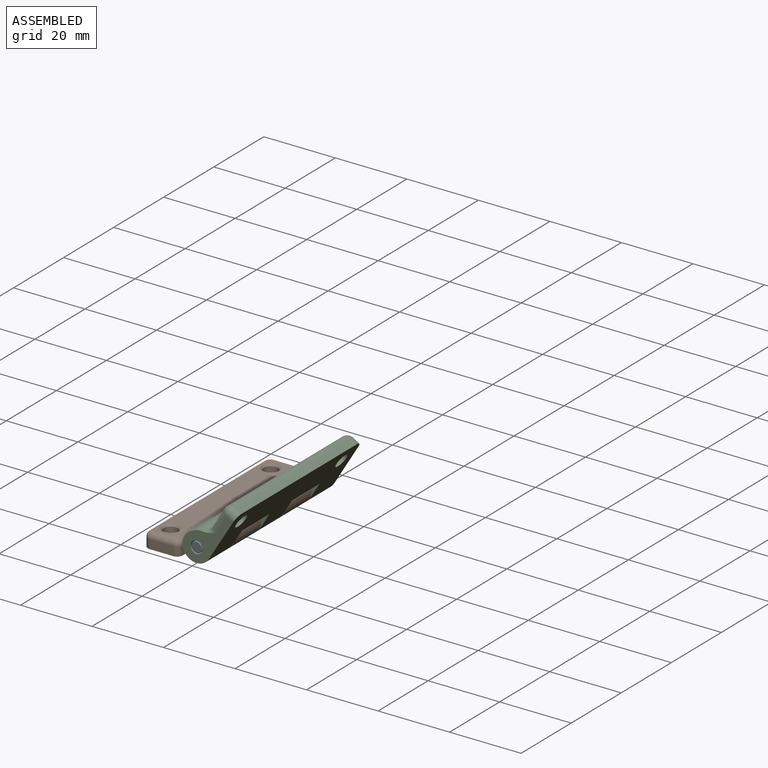
[diagram: assembled view]
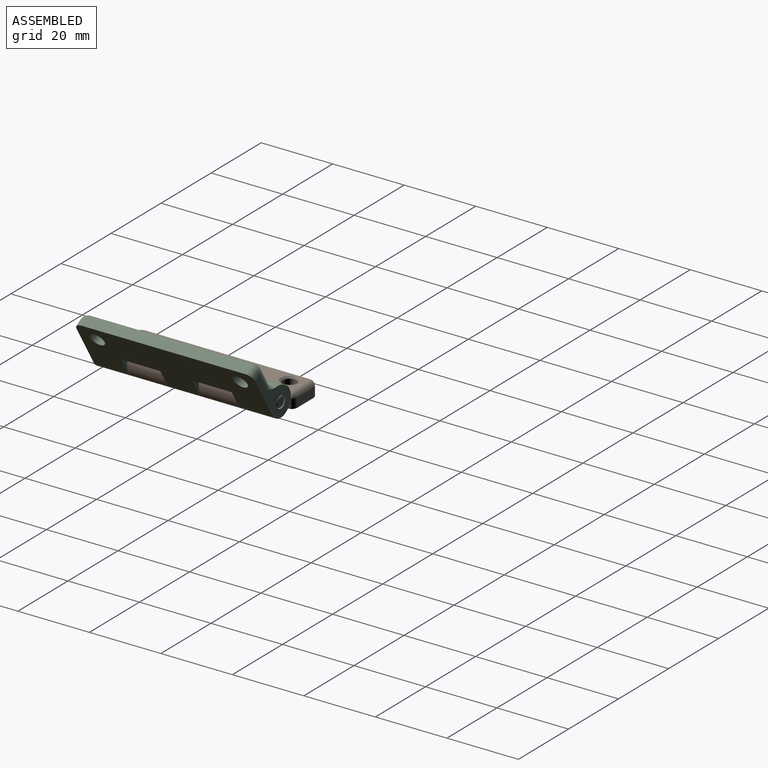
[diagram: assembled view, second angle]
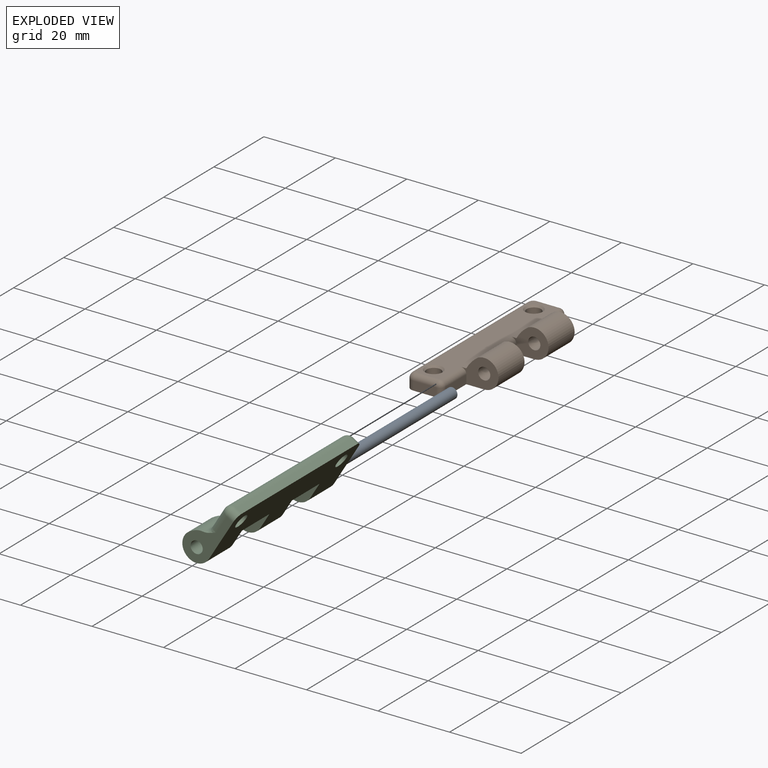
[diagram: exploded view]
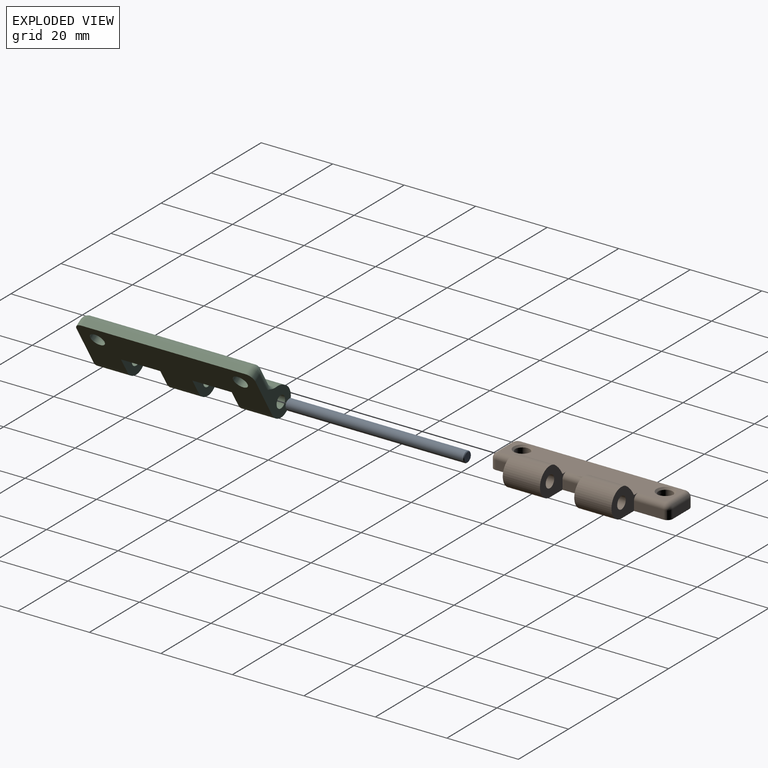
[diagram: exploded view, second angle]
ASSEMBLY  parts=3 mates=2
PART A: 5 faces, bbox 3x50x3 mm
  f0: plane 2.6x2.6mm, normal (0,1,0), area 5.3mm2, adj f4
  f1: cylinder r=1.5mm len=49.6mm, axis (0,1,0), area 467.5mm2, adj f3,f4
  f2: plane 2.6x2.6mm, normal (0,-1,0), area 5.3mm2, adj f3
  f3: cone r=1.5mm half-angle=45deg, axis (0,1,0), area 2.5mm2, adj f1,f2
  f4: cone r=1.3mm half-angle=45deg, axis (0,-1,0), area 2.5mm2, adj f0,f1
PART B: 36 faces, bbox 19x50x8 mm
  f0: cylinder r=4mm len=10.4mm, axis (0,1,0), area 148.7mm2, adj f5,f7,f12,f35
  f1: plane 46x2.5mm, normal (-1,0,0), area 115mm2, adj f5,f20,f21,f29
  f2: plane 6.5x2.5mm, normal (0,-1,0), area 16.2mm2, adj f5,f20,f23,f25
  f3: plane 6.5x2.5mm, normal (0,1,0), area 16.2mm2, adj f5,f21,f27,f32
  f4: plane 47x8.5mm, normal (0,0,1), area 320.8mm2, adj f7,f10,f12,f13,f16,f17,f22,f25
  f5: plane 50x15mm, normal (0,0,-1), area 576.2mm2, adj f0,f1,f2,f3,f6,f7,f8,f9
  f6: cylinder r=4mm len=10.4mm, axis (0,1,0), area 148.7mm2, adj f5,f10,f13,f34
  f7: plane 10.5x8mm, normal (0,1,0), area 50.1mm2, adj f0,f4,f5,f8,f19,f28,f35
  f8: plane 8.3x2.5mm, normal (1,0,0), area 20.8mm2, adj f5,f7,f27,f28
  f9: plane 8.3x2.5mm, normal (1,0,0), area 20.8mm2, adj f5,f10,f22,f23
  f10: plane 10.5x8mm, normal (0,-1,0), area 50.1mm2, adj f4,f5,f6,f9,f18,f22,f34
  f11: plane 9.6x2.5mm, normal (1,0,0), area 24mm2, adj f5,f12,f13,f33
  f12: plane 10.5x8mm, normal (0,-1,0), area 50.1mm2, adj f0,f4,f5,f11,f19,f33,f35
  f13: plane 10.5x8mm, normal (0,1,0), area 50.1mm2, adj f4,f5,f6,f11,f18,f33,f34
  f14: cylinder r=2mm len=4mm, axis (0,0,1), area 44mm2, adj f5,f16
  f15: cylinder r=2mm len=4mm, axis (0,0,1), area 44mm2, adj f5,f17
  f16: cone r=2mm half-angle=45deg, axis (0,0,1), area 10mm2, adj f4,f14
  f17: cone r=2mm half-angle=45deg, axis (0,0,1), area 10mm2, adj f4,f15
  f18: cylinder r=1.7mm len=10.4mm, axis (0,1,0), area 111.1mm2, adj f10,f13
  f19: cylinder r=1.7mm len=10.4mm, axis (0,1,0), area 111.1mm2, adj f7,f12
  f20: cylinder r=2mm len=2.5mm, axis (0,0,-1), area 7.9mm2, adj f1,f2,f5,f26
  f21: cylinder r=2mm len=2.5mm, axis (0,0,-1), area 7.9mm2, adj f1,f3,f5,f31
  f22: cylinder r=1.5mm len=8.3mm, axis (0,1,0), area 19.6mm2, adj f4,f9,f10,f24
  f23: cylinder r=1.5mm len=2.5mm, axis (0,0,1), area 5.9mm2, adj f2,f5,f9,f24
  f24: sphere r=1.5mm, area 3.5mm2, adj f22,f23,f25
  f25: cylinder r=1.5mm len=6.5mm, axis (-1,0,0), area 15.3mm2, adj f2,f4,f24,f26
  f26: torus R=0.5mm, axis (0,0,1), area 5.4mm2, adj f4,f20,f25,f29
  f27: cylinder r=1.5mm len=2.5mm, axis (0,0,1), area 5.9mm2, adj f3,f5,f8,f30
  f28: cylinder r=1.5mm len=8.3mm, axis (0,1,0), area 19.6mm2, adj f4,f7,f8,f30
  f29: cylinder r=1.5mm len=46mm, axis (0,1,0), area 108.4mm2, adj f1,f4,f26,f31
  f30: sphere r=1.5mm, area 3.5mm2, adj f27,f28,f32
  f31: torus R=0.5mm, axis (0,0,1), area 5.4mm2, adj f4,f21,f29,f32
  f32: cylinder r=1.5mm len=6.5mm, axis (1,0,0), area 15.3mm2, adj f3,f4,f30,f31
  f33: cylinder r=1.5mm len=9.6mm, axis (0,1,0), area 22.6mm2, adj f4,f11,f12,f13
  f34: cylinder r=10mm len=10.4mm, axis (0,-1,0), area 51.7mm2, adj f4,f6,f10,f13
  f35: cylinder r=10mm len=10.4mm, axis (0,-1,0), area 51.7mm2, adj f0,f4,f7,f12
PART C: 41 faces, bbox 19.8x54.8x8.8 mm
  f0: plane 9x0.66mm, normal (0.5,0,0.87), area 6.8mm2, adj f3,f5,f9,f28
  f1: plane 9.5x0.66mm, normal (0.5,0,0.87), area 7.2mm2, adj f4,f13,f16,f26
  f2: plane 9.5x0.66mm, normal (0.5,0,0.87), area 7.2mm2, adj f6,f10,f11,f27
  f3: plane 11x8mm, normal (0,1,0), area 51.6mm2, adj f0,f7,f9,f14,f15,f22,f28,f29
  f4: plane 11x8mm, normal (0,-1,0), area 51.6mm2, adj f1,f7,f14,f15,f16,f23,f26,f29
  f5: plane 11x8mm, normal (0,-1,0), area 51.6mm2, adj f0,f8,f9,f14,f15,f22,f28,f30
  f6: plane 11x8mm, normal (0,1,0), area 51.6mm2, adj f2,f8,f10,f14,f15,f21,f27,f30
  f7: plane 11x2mm, normal (-1,0,0), area 22mm2, adj f3,f4,f15,f29
  f8: plane 11x2mm, normal (-1,0,0), area 22mm2, adj f5,f6,f15,f30
  f9: cylinder r=4mm len=9mm, axis (0,1,0), area 131.9mm2, adj f0,f3,f5,f15
  f10: cylinder r=4mm len=9.5mm, axis (0,1,0), area 139.3mm2, adj f2,f6,f11,f15
  f11: plane 17.8x8.8mm, normal (0,-1,0), area 68.8mm2, adj f2,f10,f15,f21,f24,f27,f31,f39
  f12: plane 46x2mm, normal (1,0,0), area 92mm2, adj f15,f24,f25,f35
  f13: plane 17.8x8.8mm, normal (0,1,0), area 68.8mm2, adj f1,f15,f16,f23,f25,f26,f32,f37
  f14: plane 46x6.64mm, normal (0,0,1), area 252.8mm2, adj f3,f4,f5,f6,f19,f20,f29,f30
  f15: plane 50x15mm, normal (0,0,-1), area 613.2mm2, adj f3,f4,f5,f6,f7,f8,f9,f10
  f16: cylinder r=4mm len=9.5mm, axis (0,1,0), area 139.3mm2, adj f1,f4,f13,f15
  f17: cylinder r=2mm len=4mm, axis (0,0,1), area 44mm2, adj f15,f20
  f18: cylinder r=2mm len=4mm, axis (0,0,1), area 44mm2, adj f15,f19
  f19: cone r=2mm half-angle=45deg, axis (0,0,1), area 10mm2, adj f14,f18,f35
  f20: cone r=2mm half-angle=45deg, axis (0,0,1), area 10mm2, adj f14,f17,f35
  f21: cylinder r=1.7mm len=9.5mm, axis (0,1,0), area 101.5mm2, adj f6,f11
  f22: cylinder r=1.7mm len=9mm, axis (0,1,0), area 96.1mm2, adj f3,f5
  f23: cylinder r=1.7mm len=9.5mm, axis (0,1,0), area 101.5mm2, adj f4,f13
  f24: cylinder r=2mm len=2mm, axis (0,0,-1), area 6.3mm2, adj f11,f12,f15,f33
  f25: cylinder r=2mm len=2mm, axis (0,0,-1), area 6.3mm2, adj f12,f13,f15,f34
  f26: cylinder r=5mm len=9.5mm, axis (0,-1,0), area 27.3mm2, adj f1,f4,f13,f36,f37
  f27: cylinder r=5mm len=9.5mm, axis (0,-1,0), area 27.3mm2, adj f2,f6,f11,f38,f39
  f28: cylinder r=5mm len=9mm, axis (0,-1,0), area 25.4mm2, adj f0,f3,f5,f40
  f29: cylinder r=2mm len=11mm, axis (0,1,0), area 34.6mm2, adj f3,f4,f7,f14
  f30: cylinder r=2mm len=11mm, axis (0,1,0), area 34.6mm2, adj f5,f6,f8,f14
  f31: cylinder r=2mm len=6.64mm, axis (-1,0,0), area 19.7mm2, adj f11,f14,f33,f39
  f32: cylinder r=2mm len=6.64mm, axis (1,0,0), area 19.7mm2, adj f13,f14,f34,f37
  f33: sphere r=2mm, area 6.3mm2, adj f24,f31,f35
  f34: sphere r=2mm, area 4mm2, adj f25,f32,f35
  f35: cylinder r=2mm len=46mm, axis (0,-1,0), area 144mm2, adj f12,f14,f19,f20,f33,f34
  f36: cylinder r=2mm len=7.5mm, axis (0,-1,0), area 16.3mm2, adj f4,f14,f26,f37
  f37: bspline ~4.17x3.28mm, area 6.7mm2, adj f13,f26,f32,f36
  f38: cylinder r=2mm len=7.5mm, axis (0,-1,0), area 16.3mm2, adj f6,f14,f27,f39
  f39: bspline ~4.17x3.28mm, area 6.7mm2, adj f11,f27,f31,f38
  f40: cylinder r=2mm len=9mm, axis (0,-1,0), area 19.6mm2, adj f3,f5,f14,f28
PLACE A rot(axis=(0.13,0.99,0),0deg) t=(1.06,5.28,10.07)mm
PLACE B t=(1.06,5.28,6.07)mm fixed
PLACE C rot(axis=(0,-1,0),58.6deg) t=(4.47,5.28,7.98)mm
MATE revolute C.f9 <-> A.f3  axis (0,1,0) through (1.06,-19.72,10.07)mm
MATE revolute B.f0 <-> C.f9  axis (0,1,0) through (1.06,-9.92,10.07)mm
